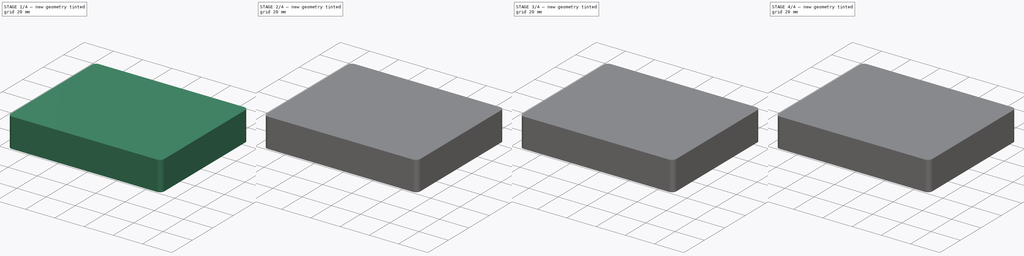
[diagram: build sequence overview — one tinted view per stage of 4, left to right]
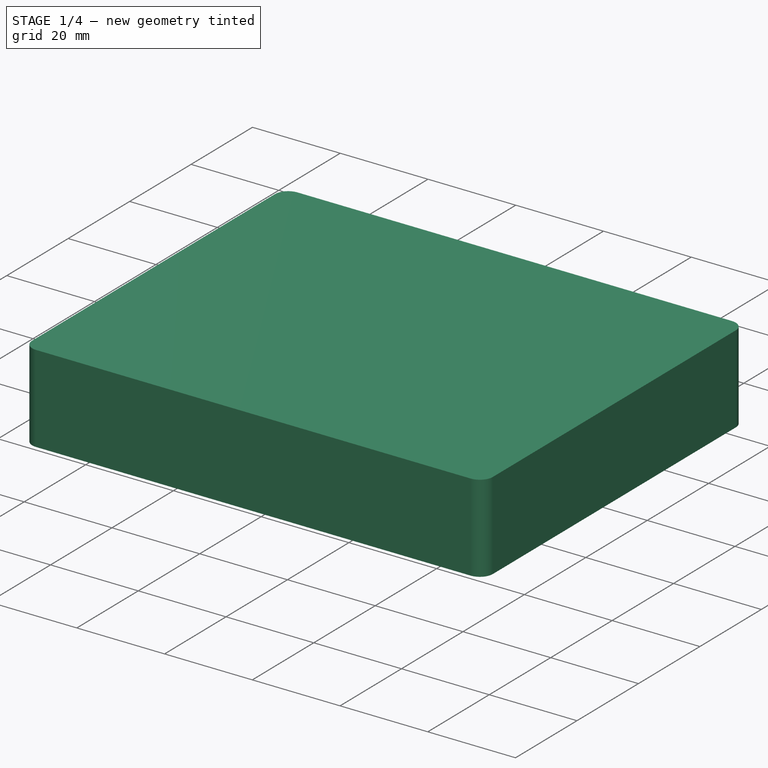
[diagram: stage 1 of 4 — iso view after this stage's code; geometry added in this stage tinted green]
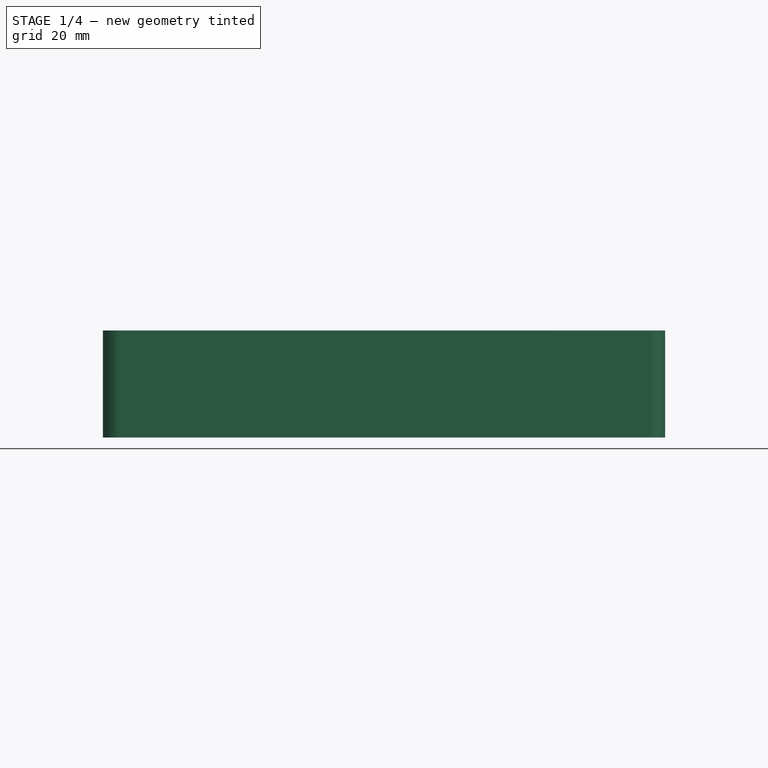
[diagram: stage 1 of 4 — front view after this stage's code; geometry added in this stage tinted green]
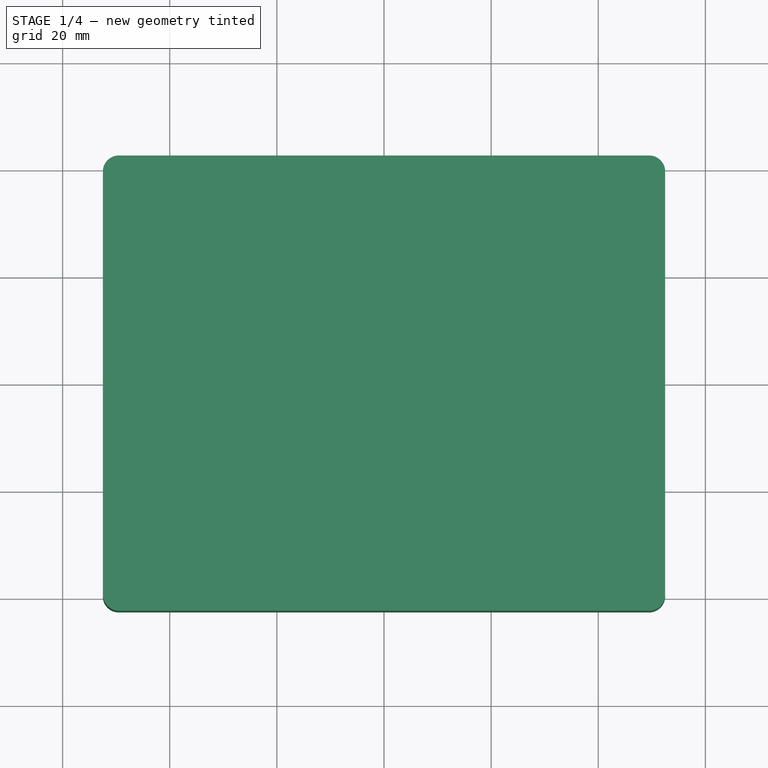
[diagram: stage 1 of 4 — top view after this stage's code; geometry added in this stage tinted green]
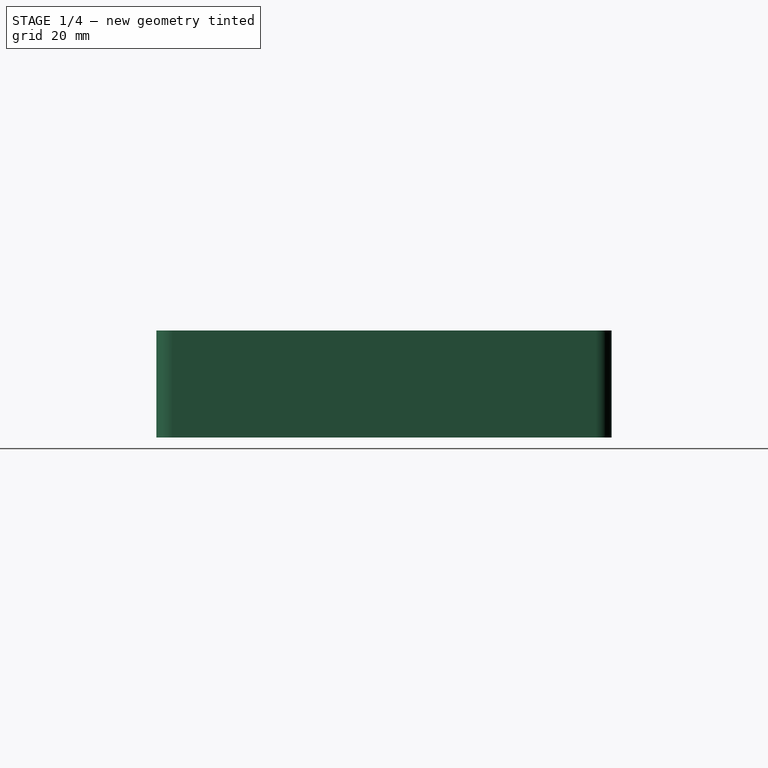
[diagram: stage 1 of 4 — right view after this stage's code; geometry added in this stage tinted green]
FCSTD DOCUMENT  (FreeCAD 1.0R39285 (Git))
Label: GA-Net Translator Enclosure
License: All rights reserved
LicenseURL: https://en.wikipedia.org/wiki/All_rights_reserved
objects: Sketcher::SketchObject×11, PartDesign::Pocket×7, PartDesign::Pad×4, PartDesign::Fillet×3, PartDesign::Body×2
note: 66 computed .brp shape members not serialized (recipe doc carries the construction recipe); baked Part::Feature solids carry a one-line shape summary decoded from their .brp

FEATURE [PartDesign::Body] Body  label="GA-Net Translator Lower"
  AllowCompound = false
  Group = -> [Sketch,Pad,Fillet,Sketch001,Pocket,Sketch002,Pad001,Sketch003,Pocket001,Sketch004,Pocket002]
  Origin = -> Origin
  Tip = -> Pocket002
FEATURE [Sketcher::SketchObject] Sketch005  label="GA-Net Translator Upper Base Sketch"
  ArcFitTolerance = 1e-06
  AttachmentSupport = -> [XY_Plane001]
  FullyConstrained = true
  MakeInternals = false
  MapMode = 5
  sketch-geometry (4):
    g0: LineSegment StartX=-52.5 StartY=42.5 StartZ=0 EndX=-52.5 EndY=-42.5 EndZ=0
    g1: LineSegment StartX=-52.5 StartY=-42.5 StartZ=0 EndX=52.5 EndY=-42.5 EndZ=0
    g2: LineSegment StartX=52.5 StartY=-42.5 StartZ=0 EndX=52.5 EndY=42.5 EndZ=0
    g3: LineSegment StartX=52.5 StartY=42.5 StartZ=0 EndX=-52.5 EndY=42.5 EndZ=0
  constraints (10):
    c: Coincident(g0,g1)
    c: Coincident(g1,g2)
    c: Coincident(g2,g3)
    c: Coincident(g3,g0)
    c: Vertical(g2)
    c: Horizontal(g3)
    c: Symmetric(g1,g0,g-2)
    c: Symmetric(g0,g0,g-1)
    c: DistanceY(g0,g0) = 85
    c: DistanceX(g3,g3) = 105
FEATURE [PartDesign::Pad] Pad002  label="GA-Net Translator Upper Base"
  Direction = (0,0,1)
  Length = 20
  Length2 = 10
  Profile = -> Sketch005
  ReferenceAxis = -> Sketch005 [N_Axis]
  Refine = true
  Suppressed = false
  Type = 0
FEATURE [PartDesign::Fillet] Fillet001  label="Upper Base Fillet"
  Base = -> Pad002 [Edge2,Edge5,Edge1,Edge8]
  BaseFeature = -> Pad002
  Radius = 3
  Refine = true
  SupportTransform = false
  Suppressed = false
  UseAllEdges = false
FEATURE [Sketcher::SketchObject] Sketch006  label="Upper Base Shell Sketch"
  ArcFitTolerance = 1e-06
  AttachmentSupport = -> [Fillet001]
  ExternalGeometry = -> [Fillet001]
  FullyConstrained = true
  MakeInternals = false
  MapMode = 5
  Placement = pos=(0,0,0) rot=(1,0,0;3.14159rad)
  sketch-geometry (20):
    g0: LineSegment StartX=-50.5 StartY=39.5 StartZ=0 EndX=-50.5 EndY=-39.5 EndZ=0
    g1: LineSegment StartX=50.5 StartY=-39.5 StartZ=0 EndX=50.5 EndY=39.5 EndZ=0
    g2: LineSegment StartX=49.5 StartY=40.5 StartZ=0 EndX=-49.5 EndY=40.5 EndZ=0
    g3: LineSegment StartX=-49.5 StartY=-40.5 StartZ=0 EndX=49.5 EndY=-40.5 EndZ=0
    g4: ArcOfCircle CenterX=-49.5 CenterY=39.5 CenterZ=0 NormalX=0 NormalY=0 NormalZ=1 AngleXU=0 Radius=1 StartAngle=1.5708 EndAngle=3.14159
    g5: ArcOfCircle CenterX=-49.5 CenterY=-39.5 CenterZ=0 NormalX=0 NormalY=0 NormalZ=1 AngleXU=0 Radius=1 StartAngle=3.14159 EndAngle=4.71239
    g6: ArcOfCircle CenterX=49.5 CenterY=-39.5 CenterZ=0 NormalX=0 NormalY=0 NormalZ=1 AngleXU=0 Radius=1 StartAngle=4.71239 EndAngle=6.28319
    g7: ArcOfCircle CenterX=49.5 CenterY=39.5 CenterZ=0 NormalX=0 NormalY=0 NormalZ=1 AngleXU=0 Radius=1 StartAngle=0 EndAngle=1.5708
    g8: LineSegment [constr] StartX=-50.5 StartY=-39.5 StartZ=0 EndX=-49.5 EndY=-39.5 EndZ=0
    g9: LineSegment [constr] StartX=-49.5 StartY=-40.5 StartZ=0 EndX=-49.5 EndY=-39.5 EndZ=0
    g10: LineSegment [constr] StartX=49.5 StartY=-39.5 StartZ=0 EndX=49.5 EndY=-40.5 EndZ=0
    g11: LineSegment [constr] StartX=49.5 StartY=-39.5 StartZ=0 EndX=50.5 EndY=-39.5 EndZ=0
    g12: LineSegment [constr] StartX=49.5 StartY=40.5 StartZ=0 EndX=49.5 EndY=39.5 EndZ=0
    g13: LineSegment [constr] StartX=49.5 StartY=39.5 StartZ=0 EndX=50.5 EndY=39.5 EndZ=0
    g14: LineSegment [constr] StartX=-49.5 StartY=40.5 StartZ=0 EndX=-49.5 EndY=39.5 EndZ=0
    g15: LineSegment [constr] StartX=-49.5 StartY=39.5 StartZ=0 EndX=-50.5 EndY=39.5 EndZ=0
    g16: LineSegment [constr] StartX=-50.5 StartY=-39.5 StartZ=0 EndX=-52.5 EndY=-39.5 EndZ=0
    g17: LineSegment [constr] StartX=-49.5 StartY=-40.5 StartZ=0 EndX=-49.5 EndY=-42.5 EndZ=0
    g18: LineSegment [constr] StartX=50.5 StartY=39.5 StartZ=0 EndX=52.5 EndY=39.5 EndZ=0
    g19: LineSegment [constr] StartX=49.5 StartY=40.5 StartZ=0 EndX=49.5 EndY=42.5 EndZ=0
  constraints (52):
    c: Vertical(g0)
    c: Vertical(g1)
    c: Horizontal(g2)
    c: Horizontal(g3)
    c: Coincident(g4,g0)
    c: Coincident(g4,g2)
    c: Coincident(g5,g0)
    c: Coincident(g5,g3)
    c: Coincident(g6,g3)
    c: Coincident(g6,g1)
    c: Coincident(g7,g2)
    c: Coincident(g7,g1)
    c: Coincident(g8,g0)
    c: Coincident(g8,g5)
    c: Coincident(g9,g3)
    c: Coincident(g9,g5)
    c: Horizontal(g8)
    c: Vertical(g9)
    c: Coincident(g10,g6)
    c: Coincident(g10,g3)
    c: Vertical(g10)
    c: Coincident(g11,g6)
    c: Coincident(g11,g1)
    c: Horizontal(g11)
    c: Coincident(g12,g2)
    c: Coincident(g12,g7)
    c: Coincident(g13,g7)
    c: Coincident(g13,g1)
    c: Horizontal(g13)
    c: Vertical(g12)
    c: Coincident(g14,g2)
    c: Coincident(g14,g4)
    c: Coincident(g15,g4)
    c: Coincident(g15,g0)
    c: Horizontal(g15)
    c: Vertical(g14)
    c: Equal(g14,g12)
    c: Equal(g13,g11)
    c: Equal(g10,g8)
    c: DistanceX(g8,g8) = 1
    c: Coincident(g16,g0)
    c: Coincident(g16,g-8)
    c: Coincident(g17,g3)
    c: Coincident(g17,g-7)
    c: Vertical(g17)
    c: Horizontal(g16)
    c: Coincident(g18,g1)
    c: Coincident(g18,g-4)
    c: Horizontal(g18)
    c: Coincident(g19,g2)
    c: Coincident(g19,g-10)
    c: Vertical(g19)
FEATURE [PartDesign::Pocket] Pocket003  label="Upper Base Shell"
  BaseFeature = -> Fillet001
  Direction = (0,0,1)
  Length = 18
  Length2 = 5
  Profile = -> Sketch006
  ReferenceAxis = -> Sketch006 [N_Axis]
  Refine = true
  Suppressed = false
  Type = 0
FEATURE [Sketcher::SketchObject] Sketch007  label="Upper Screw Post Sketch"
  ArcFitTolerance = 1e-06
  AttachmentSupport = -> [Pocket003]
  FullyConstrained = true
  MakeInternals = false
  MapMode = 5
  Placement = pos=(0,0,18) rot=(1,0,0;3.14159rad)
  sketch-geometry (8):
    g0: LineSegment [constr] StartX=-45.9 StartY=32.6 StartZ=0 EndX=-45.9 EndY=-32.6 EndZ=0
    g1: LineSegment [constr] StartX=-45.9 StartY=-32.6 StartZ=0 EndX=45.9 EndY=-32.6 EndZ=0
    g2: LineSegment [constr] StartX=45.9 StartY=-32.6 StartZ=0 EndX=45.9 EndY=32.6 EndZ=0
    g3: LineSegment [constr] StartX=45.9 StartY=32.6 StartZ=0 EndX=-45.9 EndY=32.6 EndZ=0
    g4: Circle CenterX=-45.9 CenterY=32.6 CenterZ=0 NormalX=0 NormalY=0 NormalZ=1 AngleXU=0 Radius=3.3
    g5: Circle CenterX=45.9 CenterY=32.6 CenterZ=0 NormalX=0 NormalY=0 NormalZ=1 AngleXU=0 Radius=3.3
    g6: Circle CenterX=45.9 CenterY=-32.6 CenterZ=0 NormalX=0 NormalY=0 NormalZ=1 AngleXU=0 Radius=3.3
    g7: Circle CenterX=-45.9 CenterY=-32.6 CenterZ=0 NormalX=0 NormalY=0 NormalZ=1 AngleXU=0 Radius=3.3
  constraints (18):
    c: Coincident(g0,g1)
    c: Coincident(g1,g2)
    c: Coincident(g2,g3)
    c: Coincident(g3,g0)
    c: Vertical(g2)
    c: Horizontal(g3)
    c: Symmetric(g1,g0,g-2)
    c: Symmetric(g0,g0,g-1)
    c: DistanceX(g3,g3) = 91.8
    c: DistanceY(g0,g0) = 65.2
    c: Coincident(g4,g0)
    c: Coincident(g5,g2)
    c: Coincident(g6,g1)
    c: Coincident(g7,g0)
    c: Equal(g7,g6)
    c: Equal(g6,g4)
    c: Equal(g4,g5)
    c: Diameter(g4) = 6.6
FEATURE [PartDesign::Pad] Pad003  label="Upper Screw Posts"
  BaseFeature = -> Pocket003
  Direction = (0,0,-1)
  Length = 18
  Length2 = 10
  Profile = -> Sketch007
  ReferenceAxis = -> Sketch007 [N_Axis]
  Refine = true
  Suppressed = false
  Type = 0
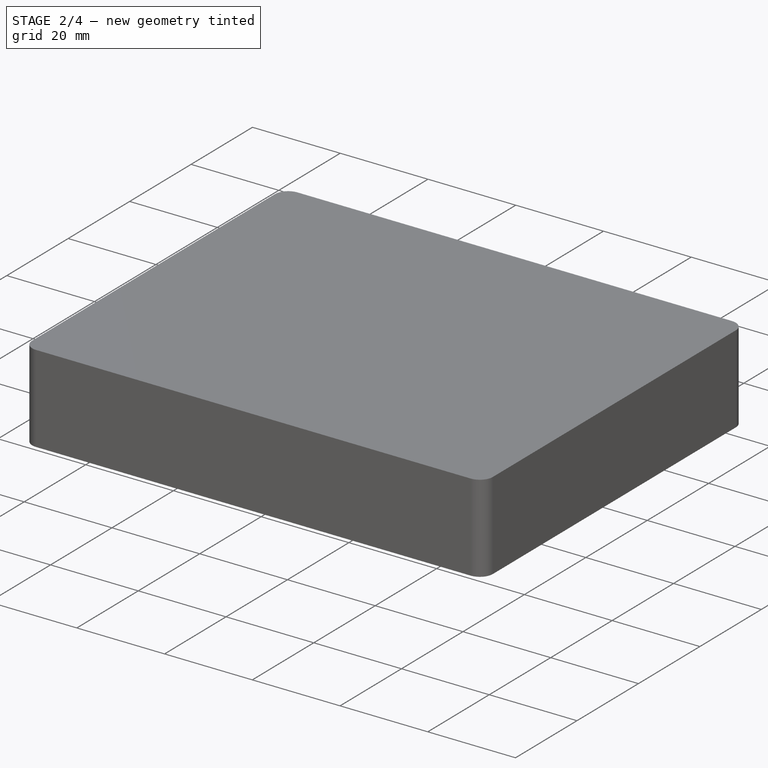
[diagram: stage 2 of 4 — iso view after this stage's code; geometry added in this stage tinted green]
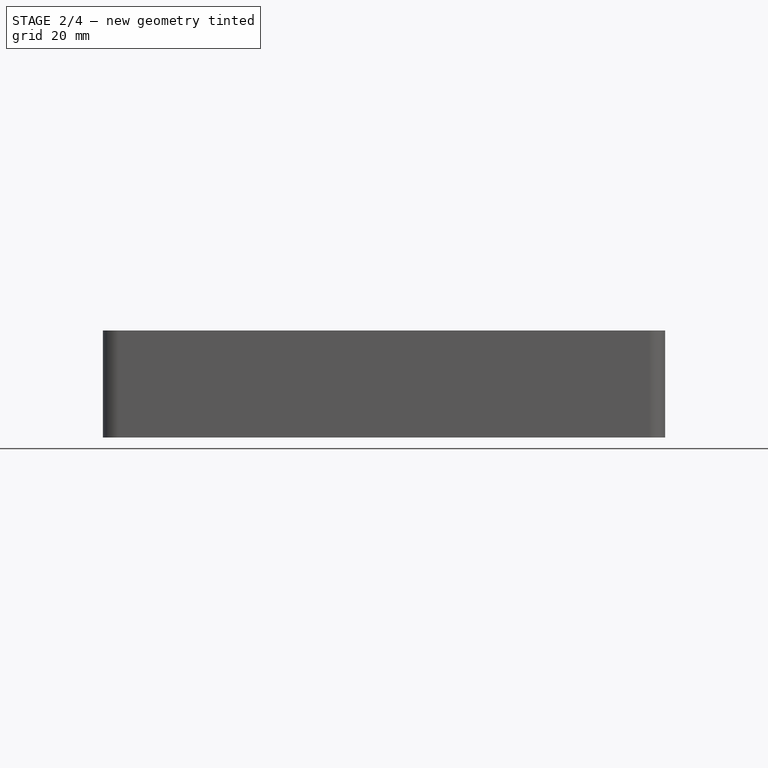
[diagram: stage 2 of 4 — front view after this stage's code; geometry added in this stage tinted green]
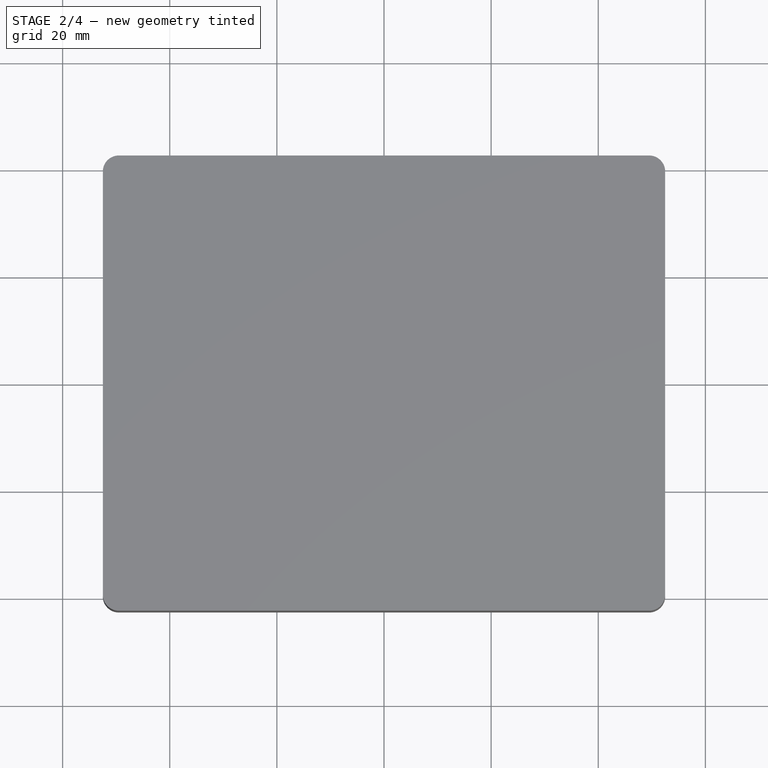
[diagram: stage 2 of 4 — top view after this stage's code; geometry added in this stage tinted green]
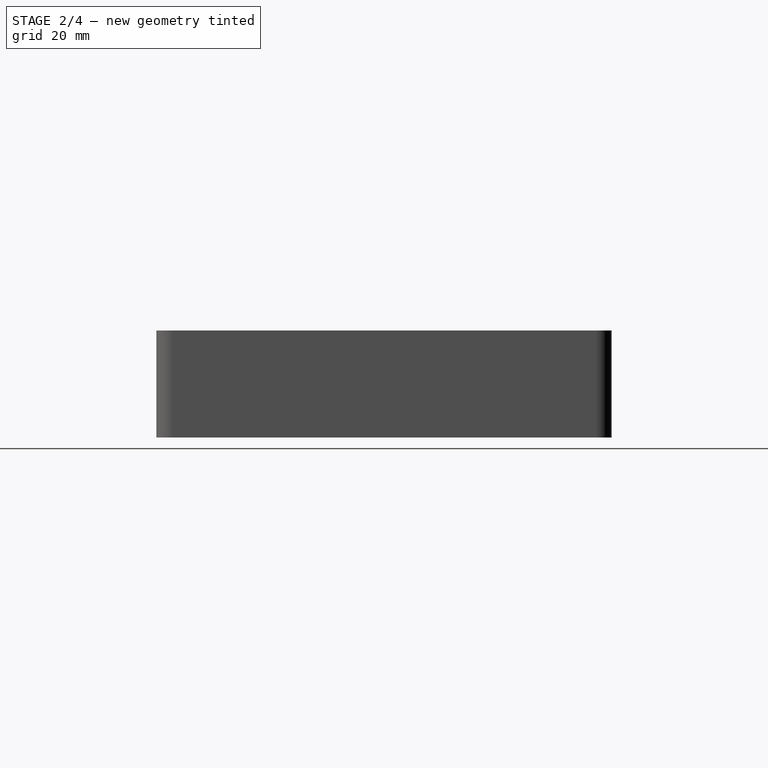
[diagram: stage 2 of 4 — right view after this stage's code; geometry added in this stage tinted green]
FEATURE [Sketcher::SketchObject] Sketch008  label="Upper Screwhole Sketch"
  ArcFitTolerance = 1e-06
  AttachmentSupport = -> [Pad003]
  ExternalGeometry = -> [Pad003]
  FullyConstrained = true
  MakeInternals = false
  MapMode = 5
  Placement = pos=(0,0,7.1e-15) rot=(1,0,0;3.14159rad)
  sketch-geometry (4):
    g0: Circle CenterX=-45.9 CenterY=32.6 CenterZ=0 NormalX=0 NormalY=0 NormalZ=1 AngleXU=0 Radius=1.15
    g1: Circle CenterX=45.9 CenterY=32.6 CenterZ=0 NormalX=0 NormalY=0 NormalZ=1 AngleXU=0 Radius=1.15
    g2: Circle CenterX=45.9 CenterY=-32.6 CenterZ=0 NormalX=0 NormalY=0 NormalZ=1 AngleXU=0 Radius=1.15
    g3: Circle CenterX=-45.9 CenterY=-32.6 CenterZ=0 NormalX=0 NormalY=0 NormalZ=1 AngleXU=0 Radius=1.15
  constraints (8):
    c: Coincident(g0,g-3)
    c: Coincident(g1,g-4)
    c: Coincident(g2,g-5)
    c: Coincident(g3,g-6)
    c: Equal(g2,g3)
    c: Equal(g3,g0)
    c: Equal(g0,g1)
    c: Diameter(g0) = 2.3
FEATURE [PartDesign::Pocket] Pocket004  label="Upper Screwholes"
  BaseFeature = -> Pad003
  Direction = (0,0,1)
  Length = 5
  Length2 = 5
  Profile = -> Sketch008
  ReferenceAxis = -> Sketch008 [N_Axis]
  Refine = true
  Suppressed = false
  Type = 0
FEATURE [PartDesign::Fillet] Fillet002  label="Upper Screwhole Fillet"
  Base = -> Pocket004 [Edge50,Edge52,Edge49,Edge51]
  BaseFeature = -> Pocket004
  Radius = 2
  Refine = true
  SupportTransform = false
  Suppressed = false
  UseAllEdges = false
FEATURE [Sketcher::SketchObject] Sketch009  label="Upper Connector Cutout Sketch"
  ArcFitTolerance = 1e-06
  AttachmentSupport = -> [Fillet002]
  ExternalGeometry = -> [Fillet002]
  FullyConstrained = true
  MakeInternals = false
  MapMode = 5
  Placement = pos=(0,40.5,0) rot=(1,0,0;1.5708rad)
  sketch-geometry (21):
    g0: GeomPoint [constr] X=45.9 Y=5.2e-15 Z=0
    g1: LineSegment StartX=18.9 StartY=0 StartZ=0 EndX=38.9 EndY=0 EndZ=0
    g2: LineSegment StartX=38.9 StartY=0 StartZ=0 EndX=38.9 EndY=18 EndZ=0
    g3: LineSegment StartX=38.9 StartY=18 StartZ=0 EndX=18.9 EndY=18 EndZ=0
    g4: LineSegment StartX=18.9 StartY=18 StartZ=0 EndX=18.9 EndY=0 EndZ=0
    g5: LineSegment StartX=9.6 StartY=0 StartZ=0 EndX=16.9 EndY=0 EndZ=0
    g6: LineSegment StartX=16.9 StartY=0 StartZ=0 EndX=16.9 EndY=5 EndZ=0
    g7: LineSegment StartX=16.9 StartY=5 StartZ=0 EndX=9.6 EndY=5 EndZ=0
    g8: LineSegment StartX=9.6 StartY=5 StartZ=0 EndX=9.6 EndY=0 EndZ=0
    g9: LineSegment StartX=-21.9 StartY=0 StartZ=0 EndX=-5.8 EndY=0 EndZ=0
    g10: LineSegment StartX=-5.8 StartY=0 StartZ=0 EndX=-5.8 EndY=13 EndZ=0
    g11: LineSegment StartX=-5.8 StartY=13 StartZ=0 EndX=-21.9 EndY=13 EndZ=0
    g12: LineSegment StartX=-21.9 StartY=13 StartZ=0 EndX=-21.9 EndY=0 EndZ=0
    g13: LineSegment StartX=-3.4 StartY=0 StartZ=0 EndX=7.6 EndY=0 EndZ=0
    g14: LineSegment StartX=7.6 StartY=0 StartZ=0 EndX=7.6 EndY=8 EndZ=0
    g15: LineSegment StartX=7.6 StartY=8 StartZ=0 EndX=-3.4 EndY=8 EndZ=0
    g16: LineSegment StartX=-3.4 StartY=8 StartZ=0 EndX=-3.4 EndY=0 EndZ=0
    g17: LineSegment StartX=-43.2 StartY=0 StartZ=0 EndX=-27.1 EndY=0 EndZ=0
    g18: LineSegment StartX=-27.1 StartY=0 StartZ=0 EndX=-27.1 EndY=13 EndZ=0
    g19: LineSegment StartX=-27.1 StartY=13 StartZ=0 EndX=-43.2 EndY=13 EndZ=0
    g20: LineSegment StartX=-43.2 StartY=13 StartZ=0 EndX=-43.2 EndY=0 EndZ=0
  constraints (61):
    c: Symmetric(g-3,g-3,g0)
    c: Coincident(g1,g2)
    c: Coincident(g2,g3)
    c: Coincident(g3,g4)
    c: Coincident(g4,g1)
    c: Horizontal(g1)
    c: Horizontal(g3)
    c: Vertical(g2)
    c: Vertical(g4)
    c: PointOnObject(g1,g-4)
    c: DistanceY(g4,g4) = 18
    c: DistanceX(g2,g0) = 7
    c: DistanceX(g1,g0) = 27
    c: Coincident(g5,g6)
    c: Coincident(g6,g7)
    c: Coincident(g7,g8)
    c: Coincident(g8,g5)
    c: Horizontal(g5)
    c: Horizontal(g7)
    c: Vertical(g6)
    c: Vertical(g8)
    c: PointOnObject(g5,g-4)
    c: DistanceX(g5,g0) = 29
    c: DistanceX(g5,g0) = 36.3
    c: DistanceY(g8,g8) = 5
    c: Coincident(g9,g10)
    c: Coincident(g10,g11)
    c: Coincident(g11,g12)
    c: Coincident(g12,g9)
    c: Horizontal(g9)
    c: Horizontal(g11)
    c: Vertical(g10)
    c: Vertical(g12)
    c: PointOnObject(g9,g-4)
    c: DistanceX(g9,g0) = 51.7
    c: DistanceX(g9,g0) = 67.8
    c: DistanceY(g12,g12) = 13
    c: Coincident(g13,g14)
    c: Coincident(g14,g15)
    c: Coincident(g15,g16)
    c: Coincident(g16,g13)
    c: Horizontal(g13)
    c: Horizontal(g15)
    c: Vertical(g14)
    c: Vertical(g16)
    c: PointOnObject(g13,g-4)
    c: DistanceX(g13,g0) = 38.3
    c: DistanceX(g13,g0) = 49.3
    c: DistanceY(g16,g16) = 8
    c: Coincident(g17,g18)
    c: Coincident(g18,g19)
    c: Coincident(g19,g20)
    c: Coincident(g20,g17)
    c: Horizontal(g17)
    c: Horizontal(g19)
    c: Vertical(g18)
    c: Vertical(g20)
    c: PointOnObject(g17,g-4)
    c: Equal(g18,g12)
    c: DistanceX(g17,g0) = 73
    c: DistanceX(g17,g0) = 89.1
FEATURE [PartDesign::Pocket] Pocket005  label="Upper Connector Cutout"
  BaseFeature = -> Fillet002
  Direction = (0,1,-2e-16)
  Length = 5
  Length2 = 12
  Profile = -> Sketch009
  ReferenceAxis = -> Sketch009 [N_Axis]
  Refine = true
  Suppressed = false
  Type = 4
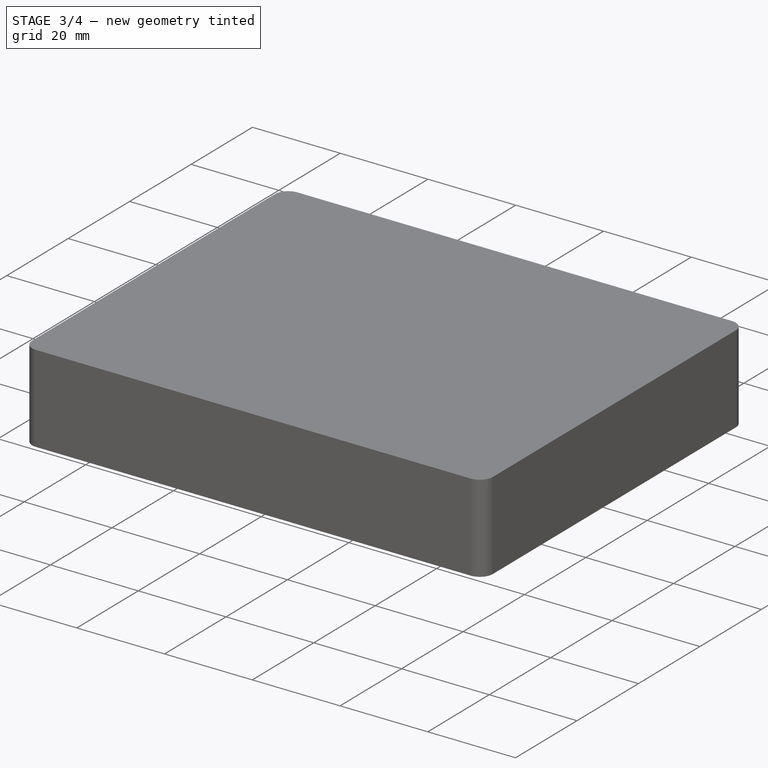
[diagram: stage 3 of 4 — iso view after this stage's code; geometry added in this stage tinted green]
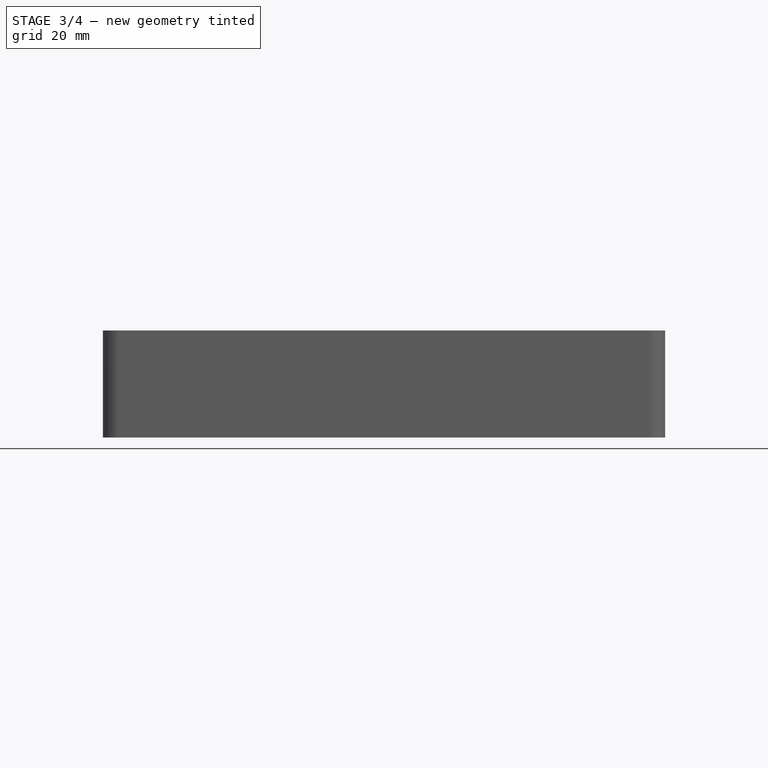
[diagram: stage 3 of 4 — front view after this stage's code; geometry added in this stage tinted green]
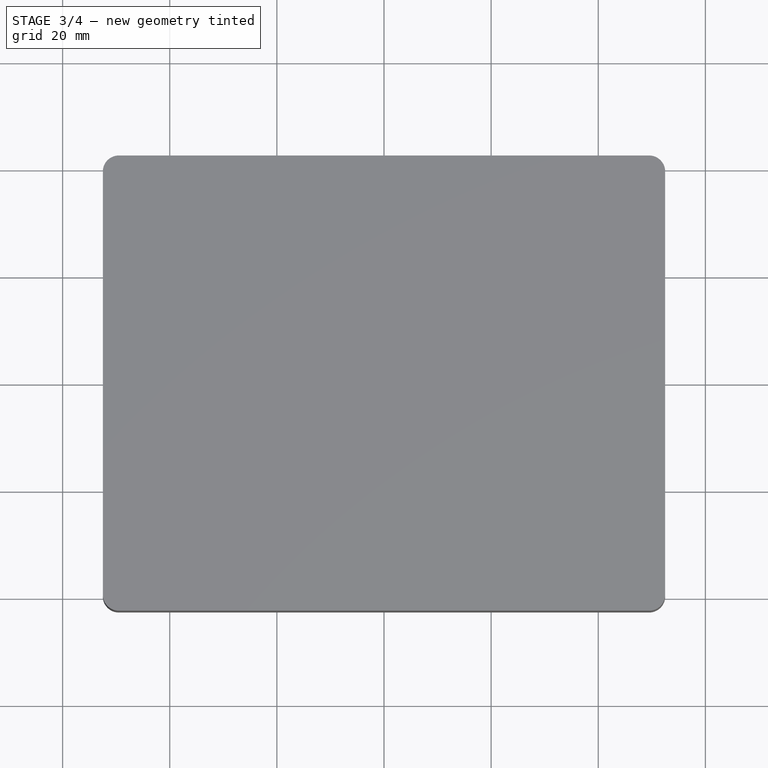
[diagram: stage 3 of 4 — top view after this stage's code; geometry added in this stage tinted green]
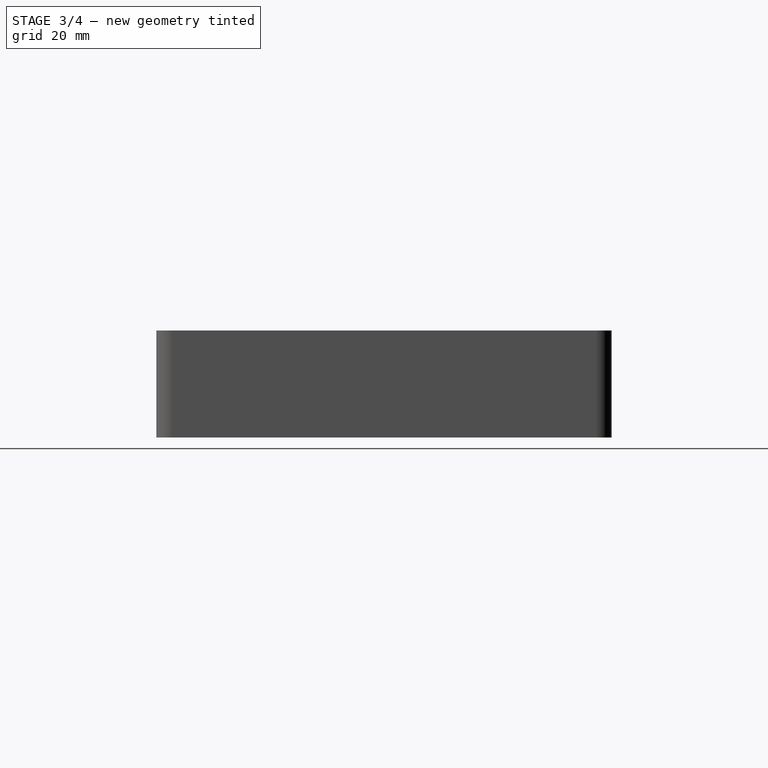
[diagram: stage 3 of 4 — right view after this stage's code; geometry added in this stage tinted green]
FEATURE [Sketcher::SketchObject] Sketch  label="GA-Net Translator Lower Base Sketch"
  ArcFitTolerance = 1e-06
  AttachmentSupport = -> [XY_Plane]
  FullyConstrained = true
  MakeInternals = false
  MapMode = 5
  sketch-geometry (4):
    g0: LineSegment StartX=-52.5 StartY=42.5 StartZ=0 EndX=-52.5 EndY=-42.5 EndZ=0
    g1: LineSegment StartX=-52.5 StartY=-42.5 StartZ=0 EndX=52.5 EndY=-42.5 EndZ=0
    g2: LineSegment StartX=52.5 StartY=-42.5 StartZ=0 EndX=52.5 EndY=42.5 EndZ=0
    g3: LineSegment StartX=52.5 StartY=42.5 StartZ=0 EndX=-52.5 EndY=42.5 EndZ=0
  constraints (10):
    c: Coincident(g0,g1)
    c: Coincident(g1,g2)
    c: Coincident(g2,g3)
    c: Coincident(g3,g0)
    c: Vertical(g2)
    c: Horizontal(g1)
    c: Symmetric(g0,g2,g-2)
    c: Symmetric(g0,g0,g-1)
    c: DistanceX(g3,g3) = 105
    c: DistanceY(g0,g0) = 85
FEATURE [PartDesign::Pad] Pad  label="GA-Net Translator Lower Base"
  Direction = (0,0,1)
  Length = 8
  Length2 = 10
  Profile = -> Sketch
  ReferenceAxis = -> Sketch [N_Axis]
  Refine = true
  Suppressed = false
  Type = 0
FEATURE [PartDesign::Fillet] Fillet  label="Lower Base Fillet"
  Base = -> Pad [Edge2,Edge5,Edge8,Edge1]
  BaseFeature = -> Pad
  Radius = 3
  Refine = true
  SupportTransform = false
  Suppressed = false
  UseAllEdges = false
FEATURE [Sketcher::SketchObject] Sketch010  label="Upper LED Cutout Sketch"
  ArcFitTolerance = 1e-06
  AttachmentSupport = -> [Pocket005]
  ExternalGeometry = -> [Pocket005]
  FullyConstrained = true
  MakeInternals = false
  MapMode = 5
  Placement = pos=(0,-42.5,0) rot=(1,0,0;1.5708rad)
  sketch-geometry (14):
    g0: LineSegment StartX=-21.3 StartY=0 StartZ=0 EndX=-15.8 EndY=0 EndZ=0
    g1: LineSegment StartX=-15.8 StartY=0 StartZ=0 EndX=-15.8 EndY=2.75 EndZ=0
    g2: LineSegment StartX=-21.3 StartY=2.75 StartZ=0 EndX=-21.3 EndY=0 EndZ=0
    g3: ArcOfCircle CenterX=-18.55 CenterY=2.75 CenterZ=0 NormalX=0 NormalY=0 NormalZ=1 AngleXU=0 Radius=2.75 StartAngle=0 EndAngle=3.14159
    g4: LineSegment [constr] StartX=-21.3 StartY=2.75 StartZ=0 EndX=-18.55 EndY=2.75 EndZ=0
    g5: LineSegment [constr] StartX=-18.55 StartY=2.75 StartZ=0 EndX=-15.8 EndY=2.75 EndZ=0
    g6: LineSegment [constr] StartX=-47.05 StartY=9.2e-15 StartZ=0 EndX=-45.9 EndY=0 EndZ=0
    g7: LineSegment [constr] StartX=-45.9 StartY=0 StartZ=0 EndX=-44.75 EndY=9.2e-15 EndZ=0
    g8: LineSegment StartX=-14.1 StartY=0 StartZ=0 EndX=-8.6 EndY=0 EndZ=0
    g9: LineSegment StartX=-8.6 StartY=0 StartZ=0 EndX=-8.6 EndY=2.75 EndZ=0
    g10: LineSegment StartX=-14.1 StartY=2.75 StartZ=0 EndX=-14.1 EndY=0 EndZ=0
    g11: ArcOfCircle CenterX=-11.35 CenterY=2.75 CenterZ=0 NormalX=0 NormalY=0 NormalZ=1 AngleXU=0 Radius=2.75 StartAngle=0 EndAngle=3.14159
    g12: LineSegment [constr] StartX=-14.1 StartY=2.75 StartZ=0 EndX=-11.35 EndY=2.75 EndZ=0
    g13: LineSegment [constr] StartX=-11.35 StartY=2.75 StartZ=0 EndX=-8.6 EndY=2.75 EndZ=0
  constraints (39):
    c: Coincident(g0,g1)
    c: Coincident(g2,g0)
    c: Horizontal(g0)
    c: Vertical(g1)
    c: Vertical(g2)
    c: PointOnObject(g0,g-4)
    c: DistanceX(g2,g1) = 5.5
    c: Coincident(g3,g2)
    c: Coincident(g3,g1)
    c: Coincident(g4,g2)
    c: Coincident(g4,g3)
    c: Horizontal(g4)
    c: Coincident(g5,g3)
    c: Coincident(g5,g1)
    c: Horizontal(g5)
    c: Equal(g4,g2)
    c: Coincident(g6,g-3)
    c: PointOnObject(g6,g-4)
    c: Coincident(g7,g6)
    c: Coincident(g7,g-3)
    c: Equal(g7,g6)
    c: DistanceX(g6,g0) = 24.6
    c: Coincident(g8,g9)
    c: Coincident(g10,g8)
    c: Horizontal(g8)
    c: Vertical(g9)
    c: Vertical(g10)
    c: PointOnObject(g8,g-4)
    c: Coincident(g11,g10)
    c: Coincident(g11,g9)
    c: Coincident(g12,g10)
    c: Coincident(g12,g11)
    c: Horizontal(g12)
    c: Coincident(g13,g11)
    c: Coincident(g13,g9)
    c: Horizontal(g13)
    c: Equal(g10,g12)
    c: Equal(g11,g3)
    c: DistanceX(g6,g10) = 31.8
FEATURE [PartDesign::Pocket] Pocket006  label="Upper LED Cutout"
  BaseFeature = -> Pocket005
  Direction = (0,1,-2e-16)
  Length = 5
  Length2 = 5
  Profile = -> Sketch010
  ReferenceAxis = -> Sketch010 [N_Axis]
  Refine = true
  Suppressed = false
  Type = 0
FEATURE [PartDesign::Body] Body001  label="GA-Net Translator Upper"
  AllowCompound = false
  Group = -> [Sketch005,Pad002,Fillet001,Sketch006,Pocket003,Sketch007,Pad003,Sketch008,Pocket004,Fillet002,Sketch009,Pocket005,Sketch010,Pocket006]
  Origin = -> Origin001
  Placement = pos=(0,0,8) rot=(0,0,1;0rad)
  Tip = -> Pocket006
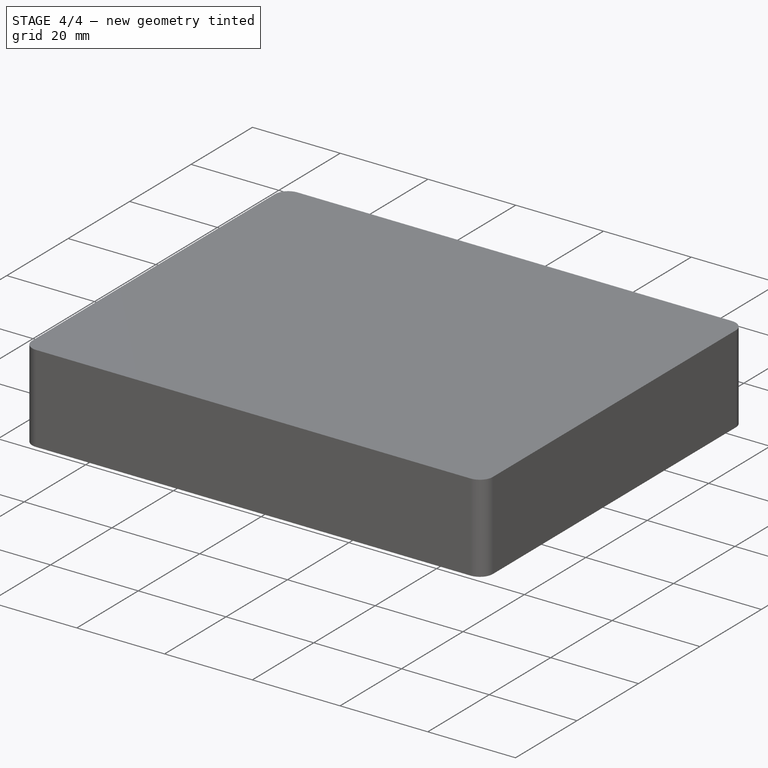
[diagram: stage 4 of 4 — iso view after this stage's code; geometry added in this stage tinted green]
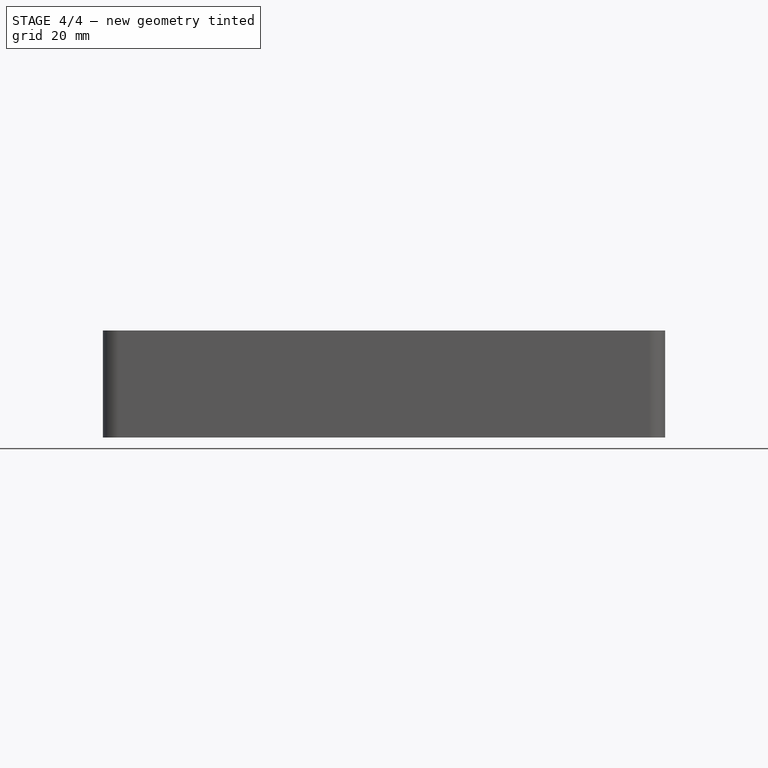
[diagram: stage 4 of 4 — front view after this stage's code; geometry added in this stage tinted green]
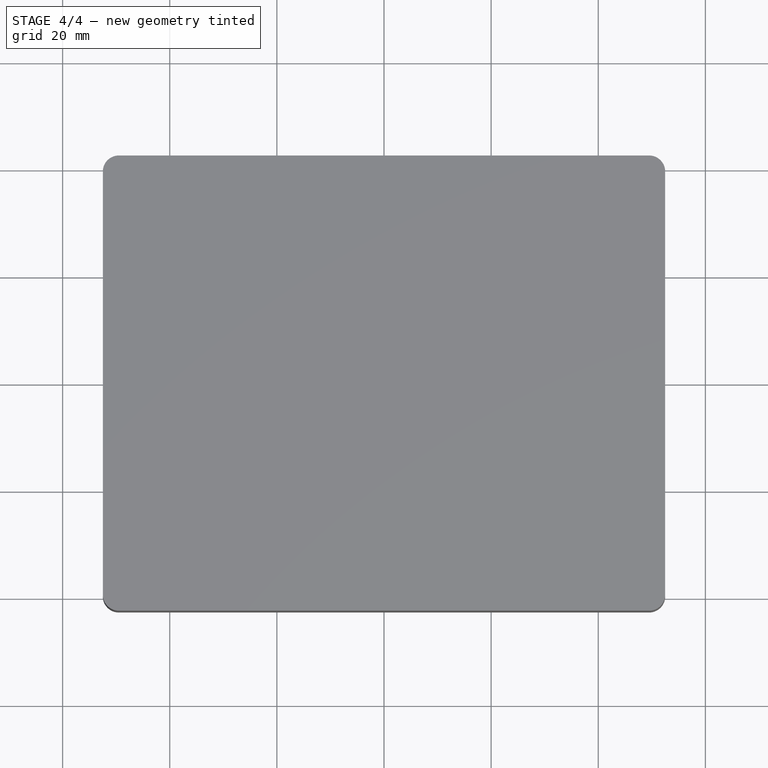
[diagram: stage 4 of 4 — top view after this stage's code; geometry added in this stage tinted green]
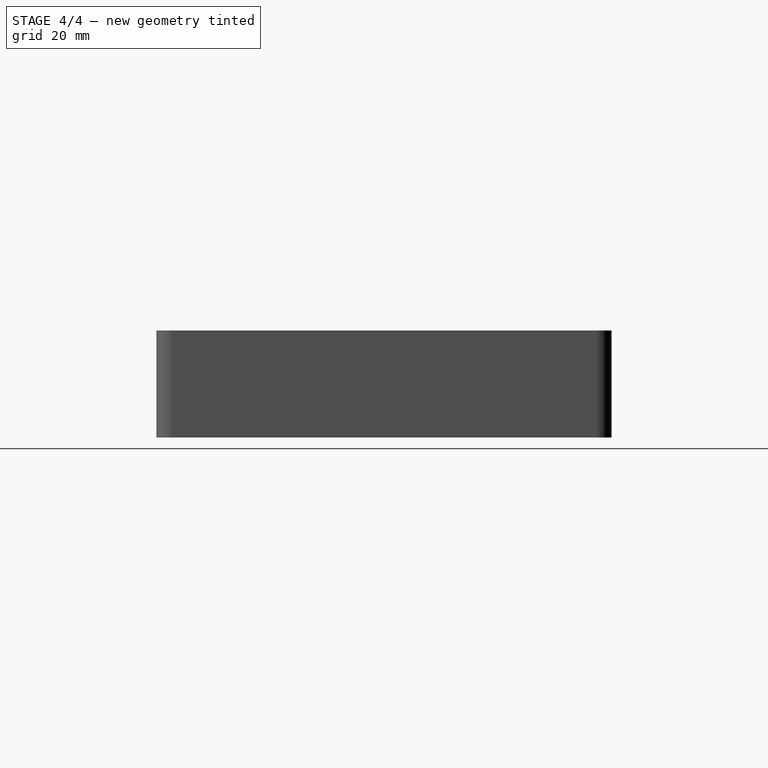
[diagram: stage 4 of 4 — right view after this stage's code; geometry added in this stage tinted green]
FEATURE [Sketcher::SketchObject] Sketch001  label="Lower Base Shell Sketch"
  ArcFitTolerance = 1e-06
  AttachmentSupport = -> [Fillet]
  ExternalGeometry = -> [Fillet]
  FullyConstrained = true
  MakeInternals = false
  MapMode = 5
  Placement = pos=(0,0,8) rot=(0,0,1;0rad)
  sketch-geometry (29):
    g0: LineSegment StartX=-50.5 StartY=-39 StartZ=0 EndX=-50.5 EndY=39 EndZ=0
    g1: ArcOfCircle CenterX=-49 CenterY=39 CenterZ=0 NormalX=0 NormalY=0 NormalZ=1 AngleXU=0 Radius=1.5 StartAngle=1.5708 EndAngle=3.14159
    g2: ArcOfCircle CenterX=-49 CenterY=-39 CenterZ=0 NormalX=0 NormalY=0 NormalZ=1 AngleXU=0 Radius=1.5 StartAngle=3.14159 EndAngle=4.71239
    g3: LineSegment [constr] StartX=-50.5 StartY=-39 StartZ=0 EndX=-50.5 EndY=-40.5 EndZ=0
    g4: LineSegment [constr] StartX=-49 StartY=-40.5 StartZ=0 EndX=-50.5 EndY=-40.5 EndZ=0
    g5: LineSegment [constr] StartX=-50.5 StartY=-39 StartZ=0 EndX=-49 EndY=-39 EndZ=0
    g6: LineSegment [constr] StartX=-49 StartY=-39 StartZ=0 EndX=-49 EndY=-40.5 EndZ=0
    g7: LineSegment [constr] StartX=-50.5 StartY=40.5 StartZ=0 EndX=-50.5 EndY=39 EndZ=0
    g8: LineSegment [constr] StartX=-50.5 StartY=39 StartZ=0 EndX=-49 EndY=39 EndZ=0
    g9: LineSegment [constr] StartX=-49 StartY=39 StartZ=0 EndX=-49 EndY=40.5 EndZ=0
    g10: LineSegment [constr] StartX=-49 StartY=40.5 StartZ=0 EndX=-50.5 EndY=40.5 EndZ=0
    g11: LineSegment [constr] StartX=-49.5 StartY=39.5 StartZ=0 EndX=-49.5 EndY=40.5 EndZ=0
    g12: LineSegment [constr] StartX=-49.5 StartY=39.5 StartZ=0 EndX=-50.5 EndY=39.5 EndZ=0
    g13: LineSegment [constr] StartX=-49.5 StartY=-39.5 StartZ=0 EndX=-50.5 EndY=-39.5 EndZ=0
    g14: LineSegment [constr] StartX=-49.5 StartY=-39.5 StartZ=0 EndX=-49.5 EndY=-40.5 EndZ=0
    g15: LineSegment StartX=-49 StartY=-40.5 StartZ=0 EndX=49 EndY=-40.5 EndZ=0
    g16: ArcOfCircle CenterX=49 CenterY=-39 CenterZ=0 NormalX=0 NormalY=0 NormalZ=1 AngleXU=0 Radius=1.5 StartAngle=4.71239 EndAngle=6.28319
    g17: LineSegment [constr] StartX=49 StartY=-39 StartZ=0 EndX=49 EndY=-40.5 EndZ=0
    g18: LineSegment [constr] StartX=49 StartY=-40.5 StartZ=0 EndX=50.5 EndY=-40.5 EndZ=0
    g19: LineSegment [constr] StartX=50.5 StartY=-40.5 StartZ=0 EndX=50.5 EndY=-39 EndZ=0
    g20: LineSegment [constr] StartX=50.5 StartY=-39 StartZ=0 EndX=49 EndY=-39 EndZ=0
    g21: LineSegment [constr] StartX=-50.5 StartY=-39 StartZ=0 EndX=-52.5 EndY=-39 EndZ=0
    g22: LineSegment [constr] StartX=50.5 StartY=-39 StartZ=0 EndX=52.5 EndY=-39 EndZ=0
    g23: LineSegment [constr] StartX=-49 StartY=-39 StartZ=0 EndX=49 EndY=-39 EndZ=0
    g24: LineSegment StartX=50.5 StartY=-39 StartZ=0 EndX=50.5 EndY=39 EndZ=0
    g25: ArcOfCircle CenterX=49 CenterY=39 CenterZ=0 NormalX=0 NormalY=0 NormalZ=1 AngleXU=0 Radius=1.5 StartAngle=1.1e-15 EndAngle=1.5708
    g26: LineSegment [constr] StartX=50.5 StartY=39 StartZ=0 EndX=49 EndY=39 EndZ=0
    g27: LineSegment [constr] StartX=49 StartY=39 StartZ=0 EndX=49 EndY=40.5 EndZ=0
    g28: LineSegment StartX=49 StartY=40.5 StartZ=0 EndX=-49 EndY=40.5 EndZ=0
  constraints (79):
    c: Vertical(g0)
    c: Coincident(g1,g0)
    c: Coincident(g2,g0)
    c: Coincident(g3,g0)
    c: Vertical(g3)
    c: Coincident(g4,g2)
    c: Coincident(g4,g3)
    c: Horizontal(g4)
    c: Coincident(g5,g0)
    c: Coincident(g5,g2)
    c: Horizontal(g5)
    c: Coincident(g6,g2)
    c: Coincident(g6,g2)
    c: Vertical(g6)
    c: Coincident(g7,g8)
    c: Coincident(g8,g9)
    c: Coincident(g9,g10)
    c: Vertical(g9)
    c: Horizontal(g8)
    c: Horizontal(g10)
    c: Coincident(g8,g1)
    c: Coincident(g1,g9)
    c: Coincident(g7,g0)
    c: Equal(g5,g8)
    c: Coincident(g7,g10)
    c: Vertical(g7)
    c: Coincident(g11,g-4)
    c: PointOnObject(g11,g10)
    c: Vertical(g11)
    c: Coincident(g12,g11)
    c: PointOnObject(g12,g7)
    c: Horizontal(g12)
    c: Coincident(g13,g-10)
    c: PointOnObject(g13,g3)
    c: Horizontal(g13)
    c: Vertical(g14)
    c: Equal(g13,g14)
    c: Equal(g12,g11)
    c: DistanceX(g-4,g12) = 2
    c: Coincident(g14,g13)
    c: PointOnObject(g14,g4)
    c: DistanceX(g5,g5) = 1.5
    c: Coincident(g15,g2)
    c: Horizontal(g15)
    c: Coincident(g16,g15)
    c: Coincident(g17,g18)
    c: Coincident(g18,g19)
    c: Coincident(g19,g20)
    c: Coincident(g20,g17)
    c: Vertical(g17)
    c: Vertical(g19)
    c: Horizontal(g18)
    c: Horizontal(g20)
    c: Coincident(g17,g16)
    c: Coincident(g17,g15)
    c: Coincident(g16,g19)
    c: Coincident(g21,g0)
    c: PointOnObject(g21,g-3)
    c: Horizontal(g21)
    c: Coincident(g22,g16)
    c: PointOnObject(g22,g-7)
    c: Horizontal(g22)
    c: Equal(g22,g21)
    c: Coincident(g23,g2)
    c: Coincident(g23,g16)
    c: Horizontal(g23)
    c: Coincident(g24,g16)
    c: Vertical(g24)
    c: Coincident(g25,g24)
    c: Coincident(g26,g24)
    c: Coincident(g26,g25)
    c: Horizontal(g26)
    c: Coincident(g27,g25)
    c: Coincident(g27,g25)
    c: Vertical(g27)
    c: Coincident(g28,g25)
    c: Coincident(g28,g1)
    c: Horizontal(g28)
    c: Equal(g9,g27)
FEATURE [PartDesign::Pocket] Pocket  label="Lower Base Shell"
  BaseFeature = -> Fillet
  Direction = (0,0,-1)
  Length = 6.5
  Length2 = 5
  Profile = -> Sketch001
  ReferenceAxis = -> Sketch001 [N_Axis]
  Refine = true
  Suppressed = false
  Type = 0
FEATURE [Sketcher::SketchObject] Sketch002  label="Lower Screw Posts Sketch"
  ArcFitTolerance = 1e-06
  AttachmentSupport = -> [Pocket]
  FullyConstrained = true
  MakeInternals = false
  MapMode = 5
  Placement = pos=(0,0,1.5) rot=(0,0,1;0rad)
  sketch-geometry (8):
    g0: LineSegment [constr] StartX=-45.9 StartY=32.6 StartZ=0 EndX=-45.9 EndY=-32.6 EndZ=0
    g1: LineSegment [constr] StartX=-45.9 StartY=-32.6 StartZ=0 EndX=45.9 EndY=-32.6 EndZ=0
    g2: LineSegment [constr] StartX=45.9 StartY=-32.6 StartZ=0 EndX=45.9 EndY=32.6 EndZ=0
    g3: LineSegment [constr] StartX=45.9 StartY=32.6 StartZ=0 EndX=-45.9 EndY=32.6 EndZ=0
    g4: Circle CenterX=-45.9 CenterY=-32.6 CenterZ=0 NormalX=0 NormalY=0 NormalZ=1 AngleXU=0 Radius=4.25
    g5: Circle CenterX=-45.9 CenterY=32.6 CenterZ=0 NormalX=0 NormalY=0 NormalZ=1 AngleXU=0 Radius=4.25
    g6: Circle CenterX=45.9 CenterY=32.6 CenterZ=0 NormalX=0 NormalY=0 NormalZ=1 AngleXU=0 Radius=4.25
    g7: Circle CenterX=45.9 CenterY=-32.6 CenterZ=0 NormalX=0 NormalY=0 NormalZ=1 AngleXU=0 Radius=4.25
  constraints (18):
    c: Coincident(g0,g1)
    c: Coincident(g1,g2)
    c: Coincident(g2,g3)
    c: Coincident(g3,g0)
    c: Vertical(g2)
    c: Horizontal(g1)
    c: DistanceX(g3,g3) = 91.8
    c: DistanceY(g0,g0) = 65.2
    c: Symmetric(g0,g2,g-2)
    c: Symmetric(g0,g0,g-1)
    c: Coincident(g4,g0)
    c: Coincident(g5,g0)
    c: Coincident(g6,g2)
    c: Coincident(g7,g1)
    c: Equal(g5,g6)
    c: Equal(g6,g7)
    c: Equal(g7,g4)
    c: Diameter(g4) = 8.5
FEATURE [PartDesign::Pad] Pad001  label="Lower Screw Posts"
  BaseFeature = -> Pocket
  Direction = (0,0,1)
  Length = 4.9
  Length2 = 10
  Profile = -> Sketch002
  ReferenceAxis = -> Sketch002 [N_Axis]
  Refine = true
  Suppressed = false
  Type = 0
FEATURE [Sketcher::SketchObject] Sketch003  label="Lower Screw Shell Sketch"
  ArcFitTolerance = 1e-06
  AttachmentSupport = -> [Pad001]
  ExternalGeometry = -> [Pad001]
  FullyConstrained = true
  MakeInternals = false
  MapMode = 5
  Placement = pos=(0,0,0) rot=(1,0,0;3.14159rad)
  sketch-geometry (6):
    g0: Circle CenterX=-45.9 CenterY=-32.6 CenterZ=0 NormalX=0 NormalY=0 NormalZ=1 AngleXU=0 Radius=3.05
    g1: LineSegment [constr] StartX=-48.95 StartY=-32.6 StartZ=0 EndX=-50.15 EndY=-32.6 EndZ=0
    g2: LineSegment [constr] StartX=-48.95 StartY=-32.6 StartZ=0 EndX=-45.9 EndY=-32.6 EndZ=0
    g3: Circle CenterX=45.9 CenterY=-32.6 CenterZ=0 NormalX=0 NormalY=0 NormalZ=1 AngleXU=0 Radius=3.05
    g4: Circle CenterX=45.9 CenterY=32.6 CenterZ=0 NormalX=0 NormalY=0 NormalZ=1 AngleXU=0 Radius=3.05
    g5: Circle CenterX=-45.9 CenterY=32.6 CenterZ=0 NormalX=0 NormalY=0 NormalZ=1 AngleXU=0 Radius=3.05
  constraints (14):
    c: Coincident(g0,g-4)
    c: PointOnObject(g1,g0)
    c: PointOnObject(g1,g-4)
    c: Horizontal(g1)
    c: Coincident(g2,g1)
    c: Coincident(g2,g0)
    c: Horizontal(g2)
    c: Distance(g1,g1) = 1.2
    c: Coincident(g3,g-5)
    c: Coincident(g4,g-6)
    c: Coincident(g5,g-3)
    c: Equal(g5,g4)
    c: Equal(g4,g3)
    c: Equal(g3,g0)
FEATURE [PartDesign::Pocket] Pocket001  label="Lower Screw Shells"
  BaseFeature = -> Pad001
  Direction = (0,0,1)
  Length = 5
  Length2 = 5
  Profile = -> Sketch003
  ReferenceAxis = -> Sketch003 [N_Axis]
  Refine = true
  Suppressed = false
  Type = 0
FEATURE [Sketcher::SketchObject] Sketch004  label="Lower Screwhole Sketch"
  ArcFitTolerance = 1e-06
  AttachmentSupport = -> [Pocket001]
  ExternalGeometry = -> [Pocket001]
  FullyConstrained = true
  MakeInternals = false
  MapMode = 5
  Placement = pos=(0,0,6.4) rot=(0,0,1;0rad)
  sketch-geometry (4):
    g0: Circle CenterX=-45.9 CenterY=32.6 CenterZ=0 NormalX=0 NormalY=0 NormalZ=1 AngleXU=0 Radius=1.75
    g1: Circle CenterX=45.9 CenterY=32.6 CenterZ=0 NormalX=0 NormalY=0 NormalZ=1 AngleXU=0 Radius=1.75
    g2: Circle CenterX=45.9 CenterY=-32.6 CenterZ=0 NormalX=0 NormalY=0 NormalZ=1 AngleXU=0 Radius=1.75
    g3: Circle CenterX=-45.9 CenterY=-32.6 CenterZ=0 NormalX=0 NormalY=0 NormalZ=1 AngleXU=0 Radius=1.75
  constraints (8):
    c: Coincident(g0,g-3)
    c: Coincident(g1,g-4)
    c: Coincident(g2,g-5)
    c: Coincident(g3,g-6)
    c: Equal(g0,g1)
    c: Equal(g1,g2)
    c: Equal(g2,g3)
    c: Diameter(g0) = 3.5
FEATURE [PartDesign::Pocket] Pocket002  label="Lower Screwholes"
  BaseFeature = -> Pocket001
  Direction = (0,0,-1)
  Length = 5
  Length2 = 5
  Profile = -> Sketch004
  ReferenceAxis = -> Sketch004 [N_Axis]
  Refine = true
  Suppressed = false
  Type = 0
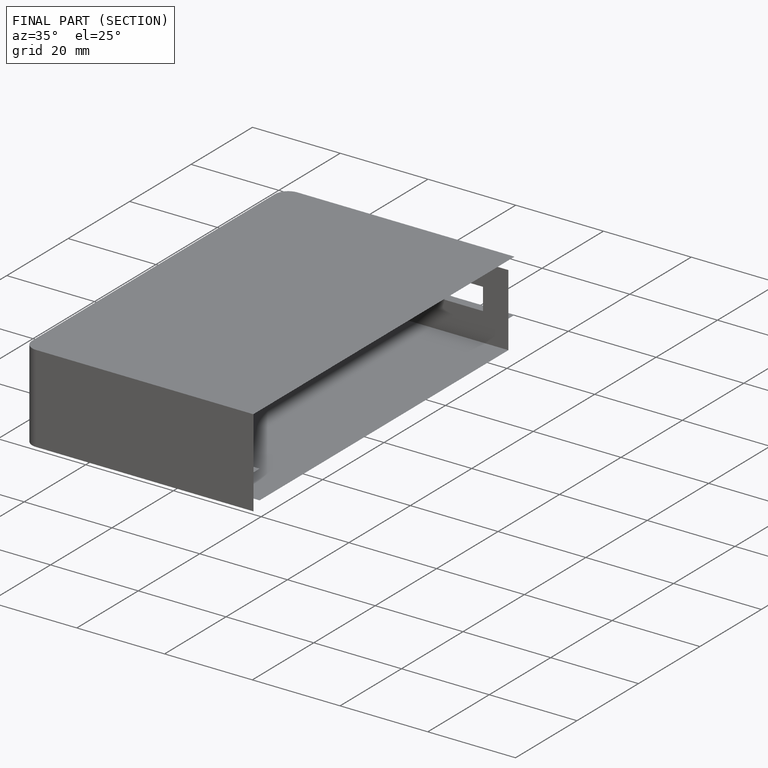
[diagram: finished part — half-section view (interior)]
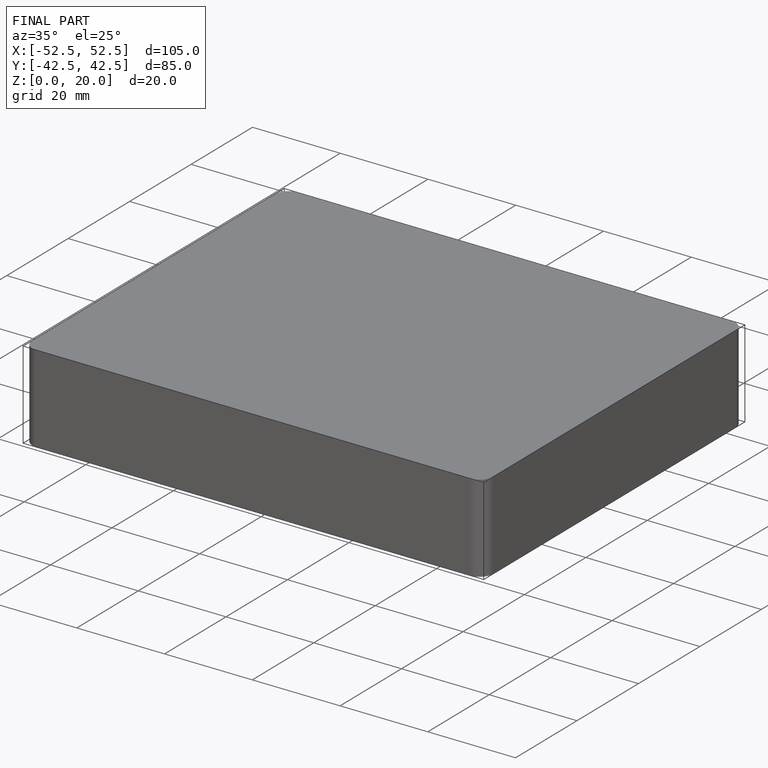
[diagram: finished part — iso view with bounding-box wireframe]
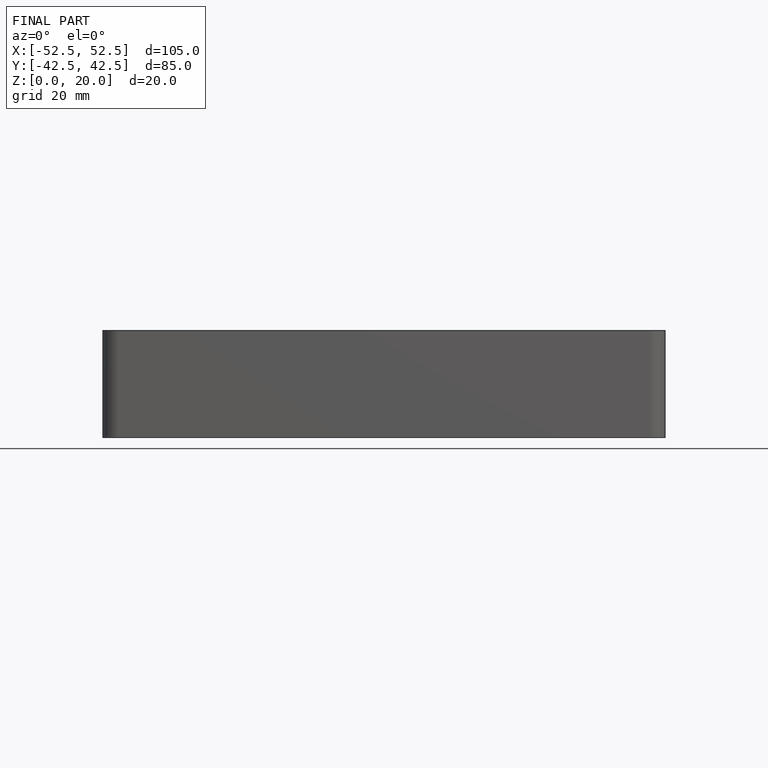
[diagram: finished part — front view with bounding-box wireframe]
